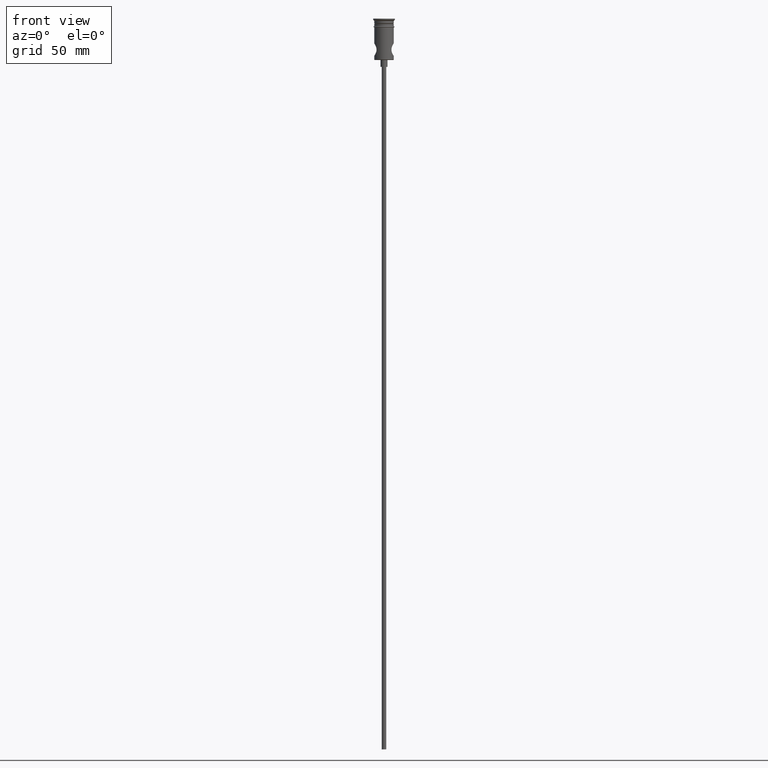
[diagram: clean part render]
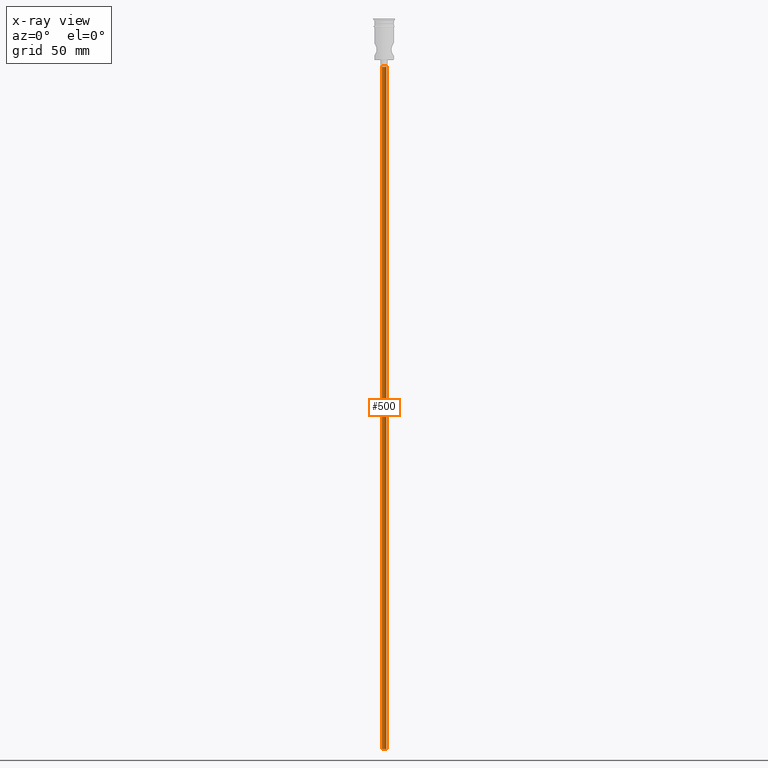
[diagram: x-ray — body ghosted, one internal face saturated and labeled with its STEP entity id]
A machine part, front view, then the same camera in x-ray: the body is ghosted and one INTERNAL B-rep face — a face not visible from any outside direction — is saturated and labeled: STEP entity #500.
In plain terms, the highlighted cylindrical surface (edge-blend (fillet) strip) has radius 1 mm, axis along (-0, -0, 1).
Its self-contained STEP definition (entity closure, byte-faithful):
#14 = LINE ( 'NONE', #117, #221 ) ;
#66 = CARTESIAN_POINT ( 'NONE',  ( 0.000000000000000000, 0.000000000000000000, -318.0000000000000000 ) ) ;
#67 = DIRECTION ( 'NONE',  ( -0.000000000000000000, -0.000000000000000000, 1.000000000000000000 ) ) ;
#68 = EDGE_CURVE ( 'NONE', #612, #321, #1144, .T. ) ;
#85 = CARTESIAN_POINT ( 'NONE',  ( 0.9999999999999997780, 0.000000000000000000, -20.99999999999999645 ) ) ;
#117 = CARTESIAN_POINT ( 'NONE',  ( 0.9999999999999997780, 0.000000000000000000, -318.0000000000000000 ) ) ;
#163 = ORIENTED_EDGE ( 'NONE', *, *, #325, .T. ) ;
#221 = VECTOR ( 'NONE', #1330, 1000.000000000000000 ) ;
#264 = CYLINDRICAL_SURFACE ( 'NONE', #1030, 0.9999999999999997780 ) ;
#321 = VERTEX_POINT ( 'NONE', #430 ) ;
#325 = EDGE_CURVE ( 'NONE', #321, #696, #411, .T. ) ;
#375 = DIRECTION ( 'NONE',  ( 1.000000000000000000, 0.000000000000000000, 0.000000000000000000 ) ) ;
#411 = CIRCLE ( 'NONE', #1388, 0.9999999999999997780 ) ;
#422 = DIRECTION ( 'NONE',  ( 0.000000000000000000, 0.000000000000000000, -1.000000000000000000 ) ) ;
#430 = CARTESIAN_POINT ( 'NONE',  ( -0.9999999999999997780, 1.224646799147352961E-16, -20.99999999999999645 ) ) ;
#472 = EDGE_CURVE ( 'NONE', #1125, #696, #14, .T. ) ;
#500 = ADVANCED_FACE ( 'NONE', ( #919 ), #264, .T. ) ;
#528 = CARTESIAN_POINT ( 'NONE',  ( 0.000000000000000000, 0.000000000000000000, -20.99999999999999645 ) ) ;
#583 = DIRECTION ( 'NONE',  ( -0.000000000000000000, -0.000000000000000000, 1.000000000000000000 ) ) ;
#612 = VERTEX_POINT ( 'NONE', #1033 ) ;
#666 = EDGE_CURVE ( 'NONE', #612, #1125, #865, .T. ) ;
#696 = VERTEX_POINT ( 'NONE', #85 ) ;
#721 = DIRECTION ( 'NONE',  ( -1.000000000000000000, 0.000000000000000000, 0.000000000000000000 ) ) ;
#811 = EDGE_LOOP ( 'NONE', ( #1214, #1282, #163, #1103 ) ) ;
#865 = CIRCLE ( 'NONE', #1117, 0.9999999999999997780 ) ;
#919 = FACE_OUTER_BOUND ( 'NONE', #811, .T. ) ;
#1030 = AXIS2_PLACEMENT_3D ( 'NONE', #1149, #583, #375 ) ;
#1033 = CARTESIAN_POINT ( 'NONE',  ( -0.9999999999999997780, 1.224646799147352961E-16, -318.0000000000000000 ) ) ;
#1034 = CARTESIAN_POINT ( 'NONE',  ( -0.9999999999999997780, 1.224646799147352961E-16, -318.0000000000000000 ) ) ;
#1103 = ORIENTED_EDGE ( 'NONE', *, *, #472, .F. ) ;
#1117 = AXIS2_PLACEMENT_3D ( 'NONE', #66, #422, #721 ) ;
#1125 = VERTEX_POINT ( 'NONE', #1262 ) ;
#1144 = LINE ( 'NONE', #1034, #1275 ) ;
#1149 = CARTESIAN_POINT ( 'NONE',  ( 0.000000000000000000, 0.000000000000000000, -318.0000000000000000 ) ) ;
#1214 = ORIENTED_EDGE ( 'NONE', *, *, #666, .F. ) ;
#1262 = CARTESIAN_POINT ( 'NONE',  ( 0.9999999999999997780, 0.000000000000000000, -318.0000000000000000 ) ) ;
#1275 = VECTOR ( 'NONE', #67, 1000.000000000000000 ) ;
#1282 = ORIENTED_EDGE ( 'NONE', *, *, #68, .T. ) ;
#1286 = DIRECTION ( 'NONE',  ( 0.000000000000000000, 0.000000000000000000, -1.000000000000000000 ) ) ;
#1330 = DIRECTION ( 'NONE',  ( -0.000000000000000000, -0.000000000000000000, 1.000000000000000000 ) ) ;
#1388 = AXIS2_PLACEMENT_3D ( 'NONE', #528, #1286, #1393 ) ;
#1393 = DIRECTION ( 'NONE',  ( -1.000000000000000000, 0.000000000000000000, 0.000000000000000000 ) ) ;